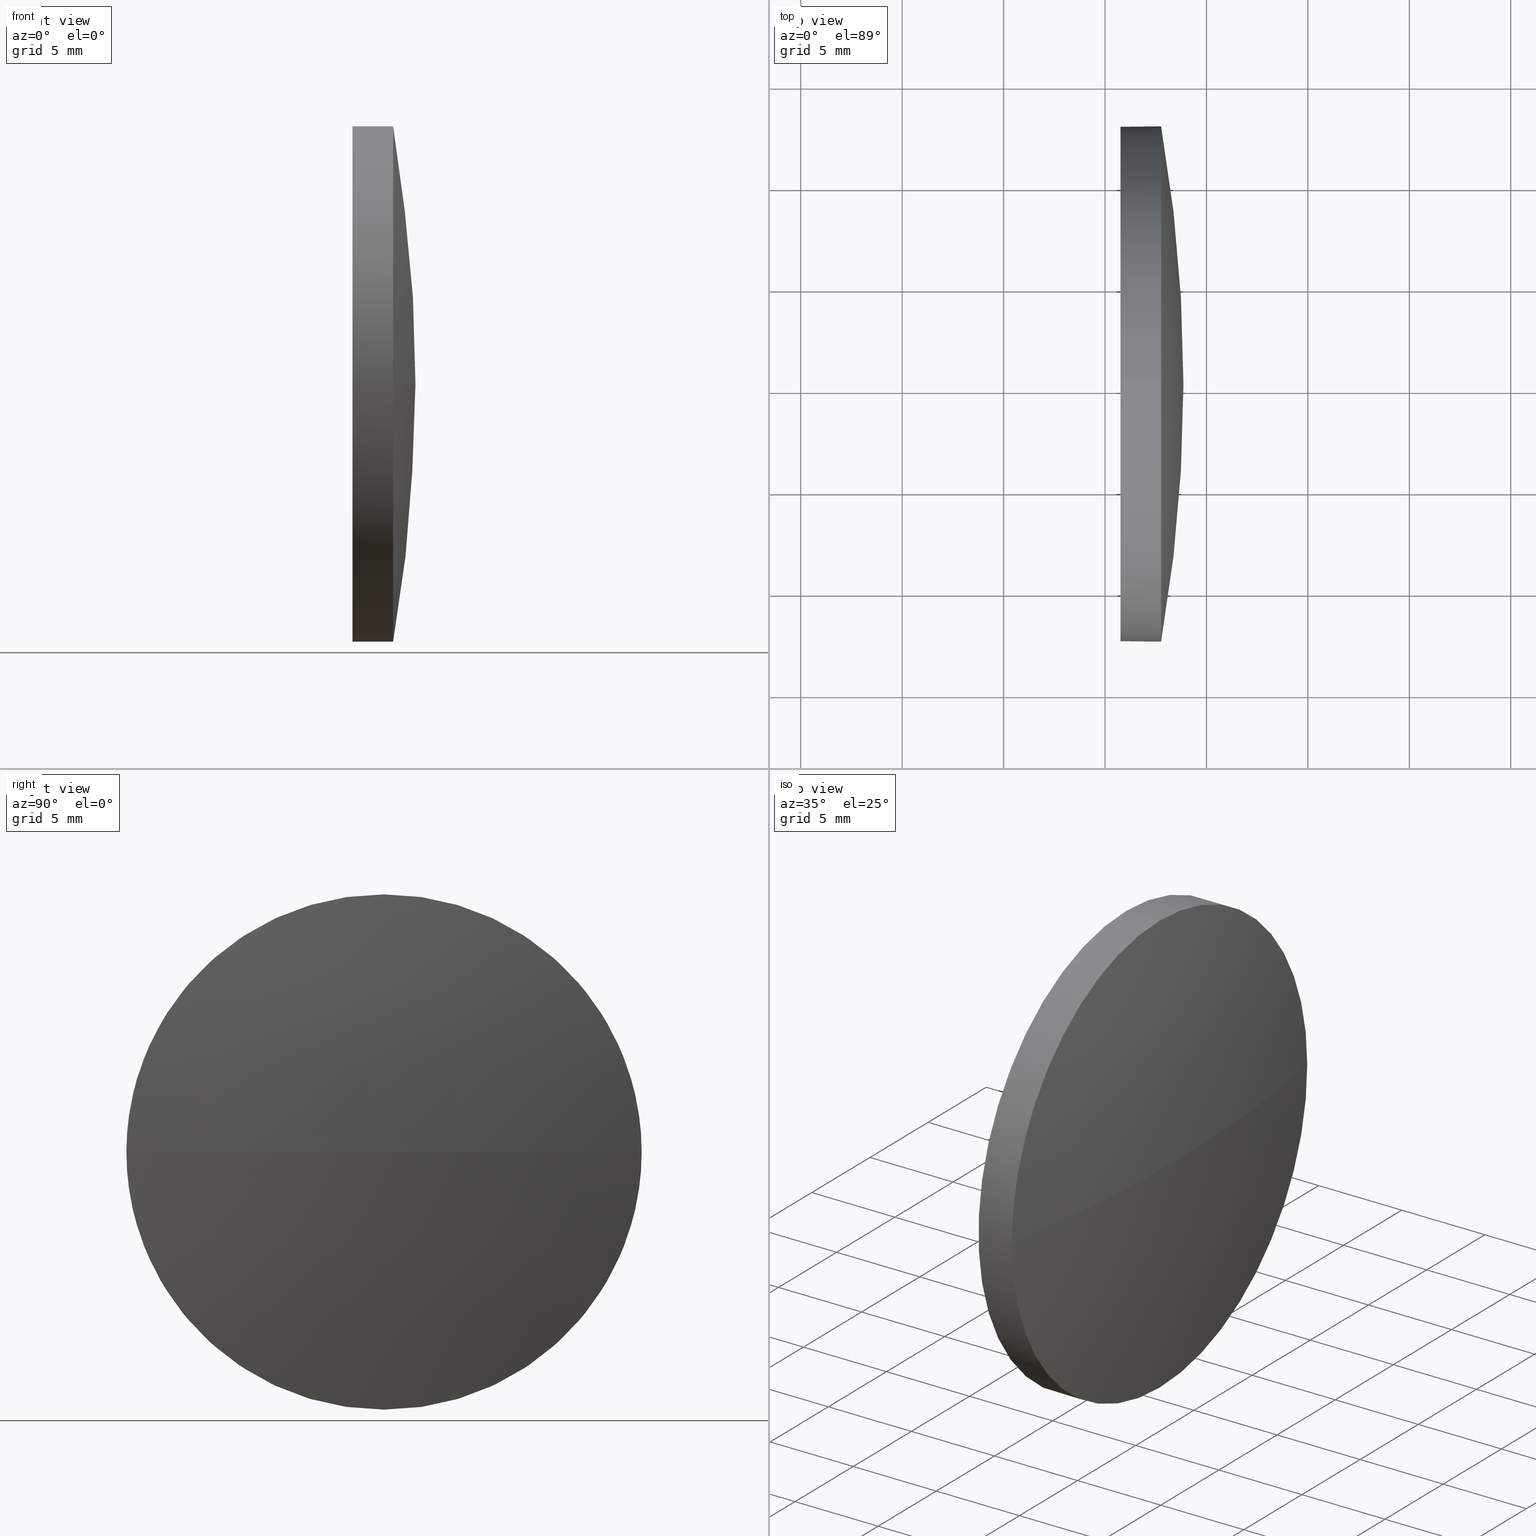
[diagram: canonical four-view strip — front | top / right | iso, engineering-drawing reading convention]
A machine part, canonical four-view strip (front | top / right | iso — engineering-drawing reading convention). The complete STEP part file that produces these views, byte-faithful:
ISO-10303-21;
HEADER;
FILE_DESCRIPTION (( 'STEP AP214' ),
    '1' );
FILE_NAME ('100515.STEP',
    '2019-06-13T01:54:49',
    ( '' ),
    ( '' ),
    'SwSTEP 2.0',
    'SolidWorks 2016',
    '' );
FILE_SCHEMA (( 'AUTOMOTIVE_DESIGN' ));
ENDSEC;

DATA;
#1 = DIRECTION ( 'NONE',  ( 1.000000000000000000, 0.0000000000000000000, 0.0000000000000000000 ) ) ;
#2 = ADVANCED_FACE ( 'NONE', ( #72 ), #60, .T. ) ;
#3 = PLANE ( 'NONE',  #41 ) ;
#4 = DIRECTION ( 'NONE',  ( 1.000000000000000000, 0.0000000000000000000, 0.0000000000000000000 ) ) ;
#5 = CARTESIAN_POINT ( 'NONE',  ( 45.00091911256444600, 65.23355492641219700, 0.0000000000000000000 ) ) ;
#6 = CARTESIAN_POINT ( 'NONE',  ( 45.00091911256444600, 65.23355492641219700, 0.0000000000000000000 ) ) ;
#7 = CARTESIAN_POINT ( 'NONE',  ( 45.00091911256444600, 65.23355492641219700, 0.0000000000000000000 ) ) ;
#8 =( GEOMETRIC_REPRESENTATION_CONTEXT ( 3 ) GLOBAL_UNCERTAINTY_ASSIGNED_CONTEXT ( ( #122 ) ) GLOBAL_UNIT_ASSIGNED_CONTEXT ( ( #113, #156, #142 ) ) REPRESENTATION_CONTEXT ( 'NONE', 'WORKASPACE' ) );
#9 = CIRCLE ( 'NONE', #48, 12.70000000000000300 ) ;
#10 = DIRECTION ( 'NONE',  ( 0.0000000000000000000, 1.000000000000000000, 1.224646799147353200E-016 ) ) ;
#11 = DIRECTION ( 'NONE',  ( -1.000000000000000000, -0.0000000000000000000, -0.0000000000000000000 ) ) ;
#12 = APPLICATION_CONTEXT ( 'automotive_design' ) ;
#13 = ORIENTED_EDGE ( 'NONE', *, *, #37, .F. ) ;
#14 = EDGE_LOOP ( 'NONE', ( #22, #63, #147, #169, #62 ) ) ;
#15 = ORIENTED_EDGE ( 'NONE', *, *, #127, .F. ) ;
#16 = PRESENTATION_STYLE_ASSIGNMENT (( #160 ) ) ;
#17 = AXIS2_PLACEMENT_3D ( 'NONE', #151, #38, #121 ) ;
#18 = SURFACE_STYLE_FILL_AREA ( #130 ) ;
#19 = CLOSED_SHELL ( 'NONE', ( #30, #81, #139, #2, #44 ) ) ;
#20 = PRODUCT ( '100515', '100515', '', ( #89 ) ) ;
#21 = ADVANCED_BREP_SHAPE_REPRESENTATION ( '100515', ( #93, #181 ), #129 ) ;
#22 = ORIENTED_EDGE ( 'NONE', *, *, #127, .T. ) ;
#23 = FILL_AREA_STYLE_COLOUR ( '', #180 ) ;
#24 = DIRECTION ( 'NONE',  ( 1.000000000000000000, 0.0000000000000000000, 0.0000000000000000000 ) ) ;
#25 = DIRECTION ( 'NONE',  ( 0.0000000000000000000, 1.000000000000000000, 0.0000000000000000000 ) ) ;
#26 = CIRCLE ( 'NONE', #149, 73.86363636363674300 ) ;
#27 = SURFACE_SIDE_STYLE ('',( #18 ) ) ;
#28 =( NAMED_UNIT ( * ) PLANE_ANGLE_UNIT ( ) SI_UNIT ( $, .RADIAN. ) );
#29 = FACE_OUTER_BOUND ( 'NONE', #176, .T. ) ;
#30 = ADVANCED_FACE ( 'NONE', ( #135 ), #132, .T. ) ;
#31 = AXIS2_PLACEMENT_3D ( 'NONE', #34, #47, #96 ) ;
#32 = LINE ( 'NONE', #157, #95 ) ;
#33 = AXIS2_PLACEMENT_3D ( 'NONE', #55, #11, #51 ) ;
#34 = CARTESIAN_POINT ( 'NONE',  ( 117.7645554762012000, 65.23355492641219700, 0.0000000000000000000 ) ) ;
#35 = ORIENTED_EDGE ( 'NONE', *, *, #46, .F. ) ;
#36 = ORIENTED_EDGE ( 'NONE', *, *, #45, .T. ) ;
#37 = EDGE_CURVE ( 'NONE', #64, #59, #172, .T. ) ;
#38 = DIRECTION ( 'NONE',  ( -1.000000000000000000, -0.0000000000000000000, -0.0000000000000000000 ) ) ;
#39 = CARTESIAN_POINT ( 'NONE',  ( 110.1653732284884500, 65.23355492641219700, 12.70000000000000300 ) ) ;
#40 = DIRECTION ( 'NONE',  ( -1.000000000000000000, -0.0000000000000000000, -0.0000000000000000000 ) ) ;
#41 = AXIS2_PLACEMENT_3D ( 'NONE', #167, #4, #80 ) ;
#42 = VECTOR ( 'NONE', #70, 1000.000000000000000 ) ;
#43 = AXIS2_PLACEMENT_3D ( 'NONE', #52, #50, #25 ) ;
#44 = ADVANCED_FACE ( 'NONE', ( #109 ), #3, .F. ) ;
#45 = EDGE_CURVE ( 'NONE', #119, #59, #118, .T. ) ;
#46 = EDGE_CURVE ( 'NONE', #119, #97, #26, .T. ) ;
#47 = DIRECTION ( 'NONE',  ( -1.000000000000000000, -0.0000000000000000000, -0.0000000000000000000 ) ) ;
#48 = AXIS2_PLACEMENT_3D ( 'NONE', #183, #69, #125 ) ;
#49 = VERTEX_POINT ( 'NONE', #66 ) ;
#50 = DIRECTION ( 'NONE',  ( -0.0000000000000000000, 0.0000000000000000000, -1.000000000000000000 ) ) ;
#51 = DIRECTION ( 'NONE',  ( 0.0000000000000000000, 0.0000000000000000000, 1.000000000000000000 ) ) ;
#52 = CARTESIAN_POINT ( 'NONE',  ( 45.00091911256444600, 65.23355492641219700, 0.0000000000000000000 ) ) ;
#53 = CIRCLE ( 'NONE', #77, 12.70000000000000300 ) ;
#54 = FILL_AREA_STYLE_COLOUR ( '', #179 ) ;
#55 = CARTESIAN_POINT ( 'NONE',  ( 117.7645554762012000, 65.23355492641219700, 0.0000000000000000000 ) ) ;
#56 = EDGE_LOOP ( 'NONE', ( #159, #104 ) ) ;
#57 = APPLICATION_PROTOCOL_DEFINITION ( 'draft international standard', 'automotive_design', 1998, #133 ) ;
#58 = UNCERTAINTY_MEASURE_WITH_UNIT (LENGTH_MEASURE( 1.000000000000000100E-005 ), #161, 'distance_accuracy_value', 'NONE');
#59 = VERTEX_POINT ( 'NONE', #141 ) ;
#60 = CYLINDRICAL_SURFACE ( 'NONE', #17, 12.70000000000000300 ) ;
#61 = AXIS2_PLACEMENT_3D ( 'NONE', #5, #155, #10 ) ;
#62 = ORIENTED_EDGE ( 'NONE', *, *, #162, .T. ) ;
#63 = ORIENTED_EDGE ( 'NONE', *, *, #91, .T. ) ;
#64 = VERTEX_POINT ( 'NONE', #126 ) ;
#65 = STYLED_ITEM ( 'NONE', ( #16 ), #93 ) ;
#66 = CARTESIAN_POINT ( 'NONE',  ( 115.7645554762012000, 65.23355492641219700, 12.70000000000000300 ) ) ;
#67 = ORIENTED_EDGE ( 'NONE', *, *, #162, .F. ) ;
#68 = CIRCLE ( 'NONE', #33, 12.70000000000000300 ) ;
#69 = DIRECTION ( 'NONE',  ( -1.000000000000000000, -0.0000000000000000000, -0.0000000000000000000 ) ) ;
#70 = DIRECTION ( 'NONE',  ( -1.000000000000000000, -0.0000000000000000000, -0.0000000000000000000 ) ) ;
#71 = PRESENTATION_STYLE_ASSIGNMENT (( #75 ) ) ;
#72 = FACE_OUTER_BOUND ( 'NONE', #154, .T. ) ;
#73 =( LENGTH_UNIT ( ) NAMED_UNIT ( * ) SI_UNIT ( .MILLI., .METRE. ) );
#74 = PRODUCT_DEFINITION_SHAPE ( 'NONE', 'NONE',  #100 ) ;
#75 = SURFACE_STYLE_USAGE ( .BOTH. , #27 ) ;
#76 = LINE ( 'NONE', #39, #42 ) ;
#77 = AXIS2_PLACEMENT_3D ( 'NONE', #86, #101, #170 ) ;
#78 = EDGE_CURVE ( 'NONE', #59, #136, #68, .T. ) ;
#79 = PRESENTATION_LAYER_ASSIGNMENT (  '', '', ( #134 ) ) ;
#80 = DIRECTION ( 'NONE',  ( 0.0000000000000000000, 0.0000000000000000000, -1.000000000000000000 ) ) ;
#81 = ADVANCED_FACE ( 'NONE', ( #29 ), #175, .T. ) ;
#82 = ORIENTED_EDGE ( 'NONE', *, *, #46, .T. ) ;
#83 = CARTESIAN_POINT ( 'NONE',  ( 0.0000000000000000000, 0.0000000000000000000, 0.0000000000000000000 ) ) ;
#84 = CARTESIAN_POINT ( 'NONE',  ( 117.7645554762012000, 65.23355492641219700, 12.70000000000000300 ) ) ;
#85 = PRODUCT_DEFINITION_FORMATION_WITH_SPECIFIED_SOURCE ( '�κ�', '', #20, .NOT_KNOWN. ) ;
#86 = CARTESIAN_POINT ( 'NONE',  ( 117.7645554762012000, 65.23355492641219700, 0.0000000000000000000 ) ) ;
#87 = CARTESIAN_POINT ( 'NONE',  ( 115.7645554762012000, 65.23355492641219700, 0.0000000000000000000 ) ) ;
#88 = CIRCLE ( 'NONE', #105, 12.70000000000000300 ) ;
#89 = PRODUCT_CONTEXT ( 'NONE', #12, 'mechanical' ) ;
#90 = DIRECTION ( 'NONE',  ( 0.0000000000000000000, 0.0000000000000000000, 1.000000000000000000 ) ) ;
#91 = EDGE_CURVE ( 'NONE', #64, #102, #32, .T. ) ;
#92 = EDGE_CURVE ( 'NONE', #136, #49, #76, .T. ) ;
#93 = MANIFOLD_SOLID_BREP ( '��ת1', #19 ) ;
#94 = MECHANICAL_DESIGN_GEOMETRIC_PRESENTATION_REPRESENTATION (  '', ( #65 ), #8 ) ;
#95 = VECTOR ( 'NONE', #145, 1000.000000000000000 ) ;
#96 = DIRECTION ( 'NONE',  ( 0.0000000000000000000, 0.0000000000000000000, 1.000000000000000000 ) ) ;
#97 = VERTEX_POINT ( 'NONE', #158 ) ;
#98 = DIRECTION ( 'NONE',  ( 0.0000000000000000000, 1.000000000000000000, 0.0000000000000000000 ) ) ;
#99 = ORIENTED_EDGE ( 'NONE', *, *, #78, .T. ) ;
#100 = PRODUCT_DEFINITION ( 'δ֪', '', #85, #152 ) ;
#101 = DIRECTION ( 'NONE',  ( -1.000000000000000000, -0.0000000000000000000, -0.0000000000000000000 ) ) ;
#102 = VERTEX_POINT ( 'NONE', #114 ) ;
#103 =( NAMED_UNIT ( * ) PLANE_ANGLE_UNIT ( ) SI_UNIT ( $, .RADIAN. ) );
#104 = ORIENTED_EDGE ( 'NONE', *, *, #186, .T. ) ;
#105 = AXIS2_PLACEMENT_3D ( 'NONE', #182, #40, #143 ) ;
#106 = ORIENTED_EDGE ( 'NONE', *, *, #91, .F. ) ;
#107 = PRESENTATION_LAYER_ASSIGNMENT (  '', '', ( #65 ) ) ;
#108 = CARTESIAN_POINT ( 'NONE',  ( 118.8645554762011900, 65.23355492641219700, 0.0000000000000000000 ) ) ;
#109 = FACE_OUTER_BOUND ( 'NONE', #56, .T. ) ;
#110 = DIRECTION ( 'NONE',  ( -0.0000000000000000000, 0.0000000000000000000, -1.000000000000000000 ) ) ;
#111 =( GEOMETRIC_REPRESENTATION_CONTEXT ( 3 ) GLOBAL_UNCERTAINTY_ASSIGNED_CONTEXT ( ( #178 ) ) GLOBAL_UNIT_ASSIGNED_CONTEXT ( ( #73, #103, #146 ) ) REPRESENTATION_CONTEXT ( 'NONE', 'WORKASPACE' ) );
#112 = FILL_AREA_STYLE ('',( #54 ) ) ;
#113 =( LENGTH_UNIT ( ) NAMED_UNIT ( * ) SI_UNIT ( .MILLI., .METRE. ) );
#114 = CARTESIAN_POINT ( 'NONE',  ( 115.7645554762012000, 65.23355492641219700, -12.70000000000000300 ) ) ;
#115 = ORIENTED_EDGE ( 'NONE', *, *, #45, .F. ) ;
#116 =( NAMED_UNIT ( * ) SI_UNIT ( $, .STERADIAN. ) SOLID_ANGLE_UNIT ( ) );
#117 = AXIS2_PLACEMENT_3D ( 'NONE', #153, #150, #168 ) ;
#118 = CIRCLE ( 'NONE', #61, 73.86363636363674300 ) ;
#119 = VERTEX_POINT ( 'NONE', #108 ) ;
#120 = AXIS2_PLACEMENT_3D ( 'NONE', #87, #184, #173 ) ;
#121 = DIRECTION ( 'NONE',  ( 0.0000000000000000000, 0.0000000000000000000, 1.000000000000000000 ) ) ;
#122 = UNCERTAINTY_MEASURE_WITH_UNIT (LENGTH_MEASURE( 1.000000000000000100E-005 ), #113, 'distance_accuracy_value', 'NONE');
#123 = ORIENTED_EDGE ( 'NONE', *, *, #92, .T. ) ;
#124 = SURFACE_SIDE_STYLE ('',( #177 ) ) ;
#125 = DIRECTION ( 'NONE',  ( 0.0000000000000000000, 0.0000000000000000000, 1.000000000000000000 ) ) ;
#126 = CARTESIAN_POINT ( 'NONE',  ( 117.7645554762012000, 65.23355492641219700, -12.70000000000000300 ) ) ;
#127 = EDGE_CURVE ( 'NONE', #97, #64, #53, .T. ) ;
#128 = SHAPE_DEFINITION_REPRESENTATION ( #74, #21 ) ;
#129 =( GEOMETRIC_REPRESENTATION_CONTEXT ( 3 ) GLOBAL_UNCERTAINTY_ASSIGNED_CONTEXT ( ( #58 ) ) GLOBAL_UNIT_ASSIGNED_CONTEXT ( ( #161, #28, #116 ) ) REPRESENTATION_CONTEXT ( 'NONE', 'WORKASPACE' ) );
#130 = FILL_AREA_STYLE ('',( #23 ) ) ;
#131 = ORIENTED_EDGE ( 'NONE', *, *, #78, .F. ) ;
#132 = CYLINDRICAL_SURFACE ( 'NONE', #117, 12.70000000000000300 ) ;
#133 = APPLICATION_CONTEXT ( 'automotive_design' ) ;
#134 = STYLED_ITEM ( 'NONE', ( #71 ), #21 ) ;
#135 = FACE_OUTER_BOUND ( 'NONE', #14, .T. ) ;
#136 = VERTEX_POINT ( 'NONE', #84 ) ;
#137 = SPHERICAL_SURFACE ( 'NONE', #144, 73.86363636363674300 ) ;
#138 = PRODUCT_RELATED_PRODUCT_CATEGORY ( 'part', '', ( #20 ) ) ;
#139 = ADVANCED_FACE ( 'NONE', ( #185 ), #137, .T. ) ;
#140 = ORIENTED_EDGE ( 'NONE', *, *, #186, .F. ) ;
#141 = CARTESIAN_POINT ( 'NONE',  ( 117.7645554762012000, 52.53355492641222200, -1.555301434917136100E-015 ) ) ;
#142 =( NAMED_UNIT ( * ) SI_UNIT ( $, .STERADIAN. ) SOLID_ANGLE_UNIT ( ) );
#143 = DIRECTION ( 'NONE',  ( 0.0000000000000000000, 0.0000000000000000000, 1.000000000000000000 ) ) ;
#144 = AXIS2_PLACEMENT_3D ( 'NONE', #6, #110, #98 ) ;
#145 = DIRECTION ( 'NONE',  ( -1.000000000000000000, -0.0000000000000000000, -0.0000000000000000000 ) ) ;
#146 =( NAMED_UNIT ( * ) SI_UNIT ( $, .STERADIAN. ) SOLID_ANGLE_UNIT ( ) );
#147 = ORIENTED_EDGE ( 'NONE', *, *, #166, .F. ) ;
#148 = CIRCLE ( 'NONE', #120, 12.70000000000000300 ) ;
#149 = AXIS2_PLACEMENT_3D ( 'NONE', #7, #171, #24 ) ;
#150 = DIRECTION ( 'NONE',  ( -1.000000000000000000, -0.0000000000000000000, -0.0000000000000000000 ) ) ;
#151 = CARTESIAN_POINT ( 'NONE',  ( 110.1653732284884500, 65.23355492641219700, 0.0000000000000000000 ) ) ;
#152 = PRODUCT_DEFINITION_CONTEXT ( 'detailed design', #133, 'design' ) ;
#153 = CARTESIAN_POINT ( 'NONE',  ( 110.1653732284884500, 65.23355492641219700, 0.0000000000000000000 ) ) ;
#154 = EDGE_LOOP ( 'NONE', ( #106, #174, #99, #123, #140 ) ) ;
#155 = DIRECTION ( 'NONE',  ( 0.0000000000000000000, 1.224646799147353200E-016, -1.000000000000000000 ) ) ;
#156 =( NAMED_UNIT ( * ) PLANE_ANGLE_UNIT ( ) SI_UNIT ( $, .RADIAN. ) );
#157 = CARTESIAN_POINT ( 'NONE',  ( 110.1653732284884500, 65.23355492641219700, -12.70000000000000300 ) ) ;
#158 = CARTESIAN_POINT ( 'NONE',  ( 117.7645554762012000, 77.93355492641218500, 0.0000000000000000000 ) ) ;
#159 = ORIENTED_EDGE ( 'NONE', *, *, #166, .T. ) ;
#160 = SURFACE_STYLE_USAGE ( .BOTH. , #124 ) ;
#161 =( LENGTH_UNIT ( ) NAMED_UNIT ( * ) SI_UNIT ( .MILLI., .METRE. ) );
#162 = EDGE_CURVE ( 'NONE', #136, #97, #9, .T. ) ;
#163 = APPLICATION_PROTOCOL_DEFINITION ( 'draft international standard', 'automotive_design', 1998, #12 ) ;
#164 = MECHANICAL_DESIGN_GEOMETRIC_PRESENTATION_REPRESENTATION (  '', ( #134 ), #111 ) ;
#165 = EDGE_LOOP ( 'NONE', ( #115, #82, #67, #131 ) ) ;
#166 = EDGE_CURVE ( 'NONE', #49, #102, #148, .T. ) ;
#167 = CARTESIAN_POINT ( 'NONE',  ( 115.7645554762012000, 65.23355492641219700, 0.0000000000000000000 ) ) ;
#168 = DIRECTION ( 'NONE',  ( 0.0000000000000000000, 0.0000000000000000000, 1.000000000000000000 ) ) ;
#169 = ORIENTED_EDGE ( 'NONE', *, *, #92, .F. ) ;
#170 = DIRECTION ( 'NONE',  ( 0.0000000000000000000, 0.0000000000000000000, 1.000000000000000000 ) ) ;
#171 = DIRECTION ( 'NONE',  ( -0.0000000000000000000, 0.0000000000000000000, 1.000000000000000000 ) ) ;
#172 = CIRCLE ( 'NONE', #31, 12.70000000000000300 ) ;
#173 = DIRECTION ( 'NONE',  ( 0.0000000000000000000, 0.0000000000000000000, 1.000000000000000000 ) ) ;
#174 = ORIENTED_EDGE ( 'NONE', *, *, #37, .T. ) ;
#175 = SPHERICAL_SURFACE ( 'NONE', #43, 73.86363636363674300 ) ;
#176 = EDGE_LOOP ( 'NONE', ( #35, #36, #13, #15 ) ) ;
#177 = SURFACE_STYLE_FILL_AREA ( #112 ) ;
#178 = UNCERTAINTY_MEASURE_WITH_UNIT (LENGTH_MEASURE( 1.000000000000000100E-005 ), #73, 'distance_accuracy_value', 'NONE');
#179 = COLOUR_RGB ( '',1.000000000000000000, 1.000000000000000000, 1.000000000000000000 ) ;
#180 = COLOUR_RGB ( '',1.000000000000000000, 1.000000000000000000, 1.000000000000000000 ) ;
#181 = AXIS2_PLACEMENT_3D ( 'NONE', #83, #90, #1 ) ;
#182 = CARTESIAN_POINT ( 'NONE',  ( 115.7645554762012000, 65.23355492641219700, 0.0000000000000000000 ) ) ;
#183 = CARTESIAN_POINT ( 'NONE',  ( 117.7645554762012000, 65.23355492641219700, 0.0000000000000000000 ) ) ;
#184 = DIRECTION ( 'NONE',  ( -1.000000000000000000, -0.0000000000000000000, -0.0000000000000000000 ) ) ;
#185 = FACE_OUTER_BOUND ( 'NONE', #165, .T. ) ;
#186 = EDGE_CURVE ( 'NONE', #102, #49, #88, .T. ) ;
ENDSEC;
END-ISO-10303-21;
